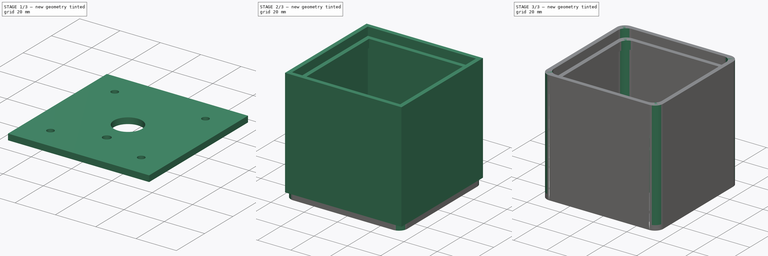
[diagram: build sequence overview — one tinted view per stage of 3, left to right]
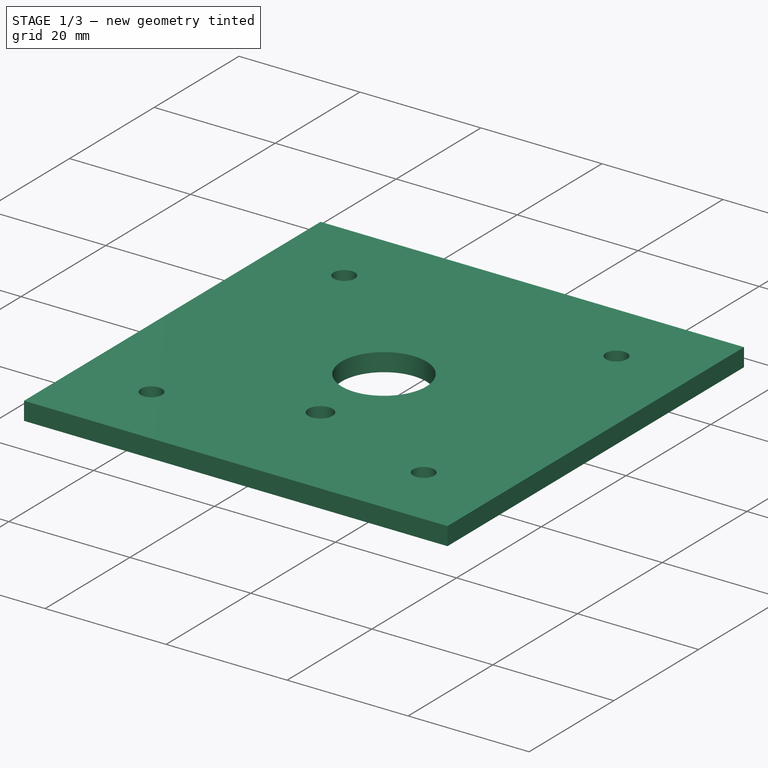
[diagram: stage 1 of 3 — iso view after this stage's code; geometry added in this stage tinted green]
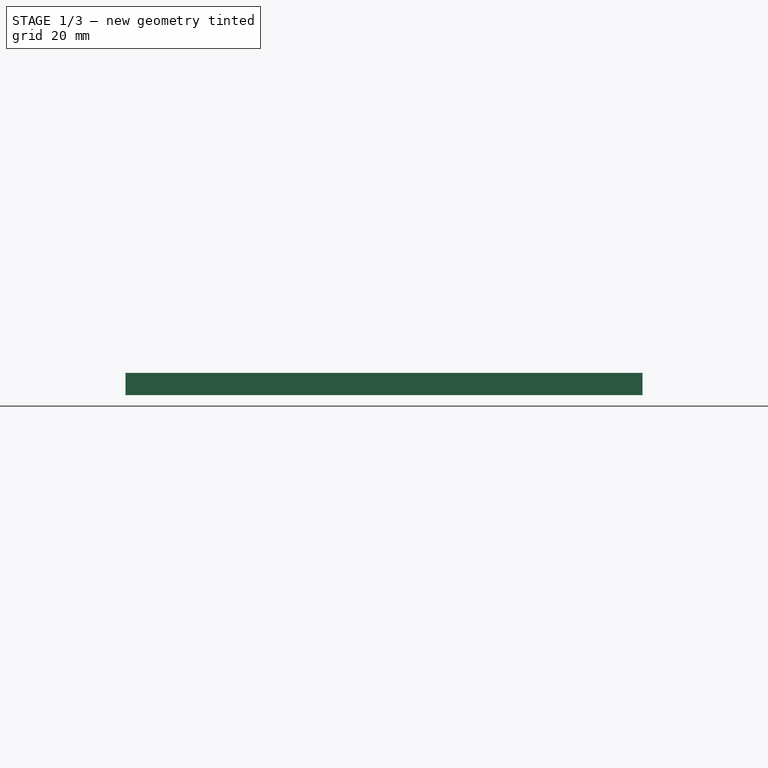
[diagram: stage 1 of 3 — front view after this stage's code; geometry added in this stage tinted green]
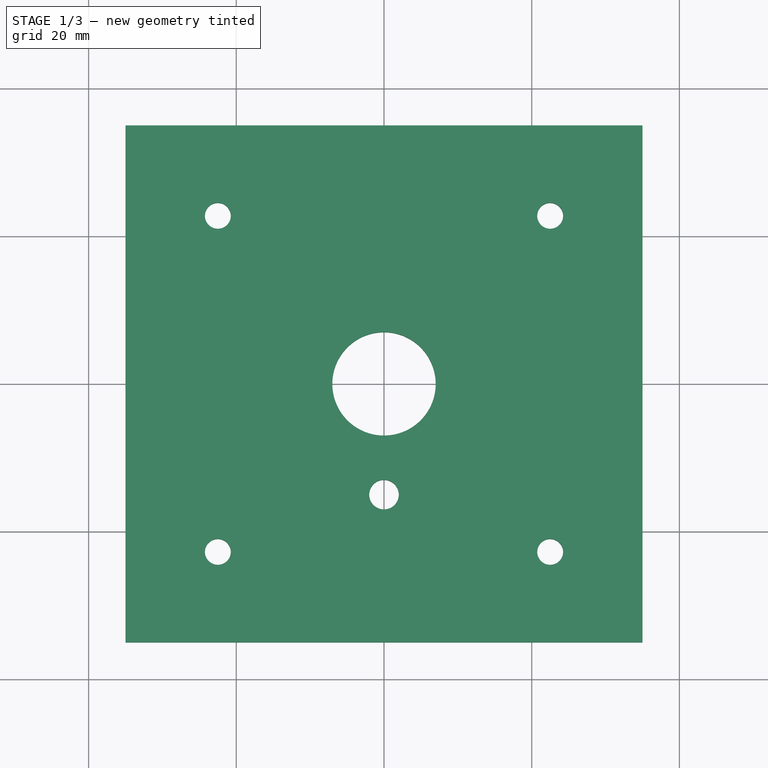
[diagram: stage 1 of 3 — top view after this stage's code; geometry added in this stage tinted green]
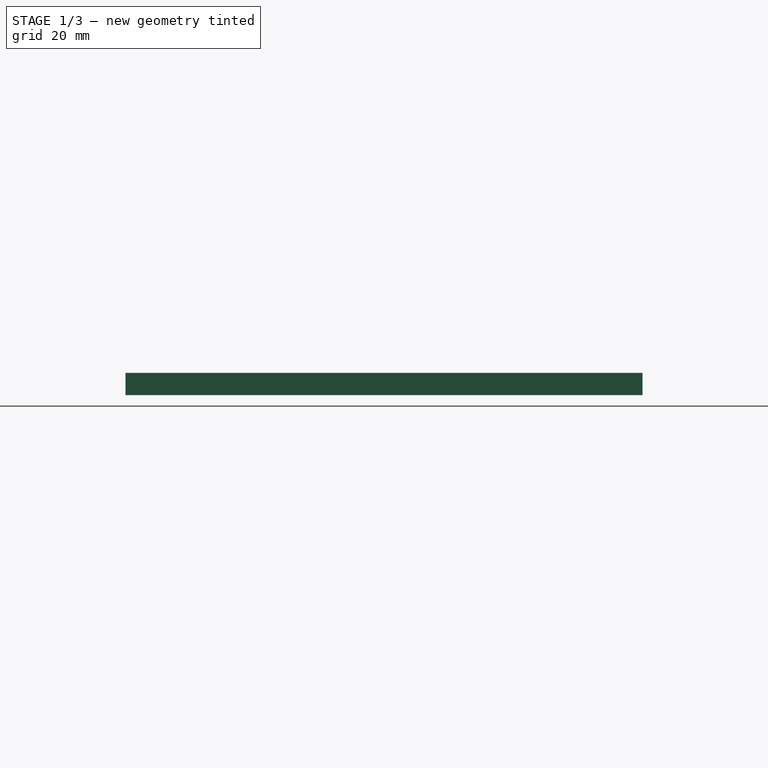
[diagram: stage 1 of 3 — right view after this stage's code; geometry added in this stage tinted green]
FCSTD DOCUMENT  (FreeCAD 1.0R39109 (Git))
Label: tablet_spk_body_aiyima
License: All rights reserved
LicenseURL: https://en.wikipedia.org/wiki/All_rights_reserved
objects: Sketcher::SketchObject×5, PartDesign::Pad×4, PartDesign::Fillet×2, PartDesign::Pocket×1, PartDesign::Body×1
note: 32 computed .brp shape members not serialized (recipe doc carries the construction recipe); baked Part::Feature solids carry a one-line shape summary decoded from their .brp

FEATURE [Sketcher::SketchObject] Sketch  label="sketch_bot_body"
  ArcFitTolerance = 1e-06
  AttachmentSupport = -> [XY_Plane]
  FullyConstrained = true
  MakeInternals = false
  MapMode = 5
  sketch-geometry (5):
    g0: LineSegment StartX=-35 StartY=-35 StartZ=0 EndX=35 EndY=-35 EndZ=0
    g1: LineSegment StartX=35 StartY=-35 StartZ=0 EndX=35 EndY=35 EndZ=0
    g2: LineSegment StartX=35 StartY=35 StartZ=0 EndX=-35 EndY=35 EndZ=0
    g3: LineSegment StartX=-35 StartY=35 StartZ=0 EndX=-35 EndY=-35 EndZ=0
    g4: GeomPoint [constr] X=0 Y=0 Z=0
  constraints (12):
    c: Coincident(g0,g1)
    c: Coincident(g1,g2)
    c: Coincident(g2,g3)
    c: Coincident(g3,g0)
    c: Horizontal(g0)
    c: Horizontal(g2)
    c: Vertical(g1)
    c: Vertical(g3)
    c: Symmetric(g2,g0,g4)
    c: Distance(g1,g3) = 70
    c: Distance(g0,g2) = 70
    c: Coincident(g4,g-1)
FEATURE [PartDesign::Pad] Pad  label="bot_body"
  Direction = (0,0,1)
  Length = 3
  Length2 = 10
  Profile = -> Sketch
  ReferenceAxis = -> Sketch [N_Axis]
  Refine = true
  Reversed = true
  Suppressed = false
  Type = 0
FEATURE [Sketcher::SketchObject] Sketch001  label="sketch_bot_hole"
  ArcFitTolerance = 1e-06
  AttachmentSupport = -> [XY_Plane]
  FullyConstrained = true
  MakeInternals = false
  MapMode = 5
  sketch-geometry (6):
    g0: Circle CenterX=-22.5 CenterY=22.7541 CenterZ=0 NormalX=0 NormalY=0 NormalZ=1 AngleXU=0 Radius=1.75
    g1: Circle CenterX=22.5 CenterY=22.7541 CenterZ=0 NormalX=0 NormalY=0 NormalZ=1 AngleXU=0 Radius=1.75
    g2: Circle CenterX=-22.5 CenterY=-22.7541 CenterZ=0 NormalX=0 NormalY=0 NormalZ=1 AngleXU=0 Radius=1.75
    g3: Circle CenterX=22.5 CenterY=-22.7541 CenterZ=0 NormalX=0 NormalY=0 NormalZ=1 AngleXU=0 Radius=1.75
    g4: Circle CenterX=0 CenterY=0 CenterZ=0 NormalX=0 NormalY=0 NormalZ=1 AngleXU=0 Radius=7
    g5: Circle CenterX=0 CenterY=-15 CenterZ=0 NormalX=0 NormalY=0 NormalZ=1 AngleXU=0 Radius=2
  constraints (14):
    c: Diameter(g0) = 3.5
    c: Distance(g0,g-1) = 32
    c: Equal(g0,g1)
    c: Symmetric(g0,g1,g-2)
    c: Equal(g0,g2)
    c: Symmetric(g0,g2,g-1)
    c: Equal(g1,g3)
    c: Symmetric(g1,g3,g-1)
    c: Diameter(g4) = 14
    c: Coincident(g4,g-1)
    c: Diameter(g5) = 4
    c: PointOnObject(g5,g-2)
    c: DistanceY(g5,g4) = 15
    c: Distance(g0,g-2) = 22.5
FEATURE [PartDesign::Pocket] Pocket  label="bot_hole"
  BaseFeature = -> Pad
  Direction = (0,0,-1)
  Length = 3
  Length2 = 5
  Profile = -> Sketch001
  ReferenceAxis = -> Sketch001 [N_Axis]
  Refine = true
  Suppressed = false
  Type = 0
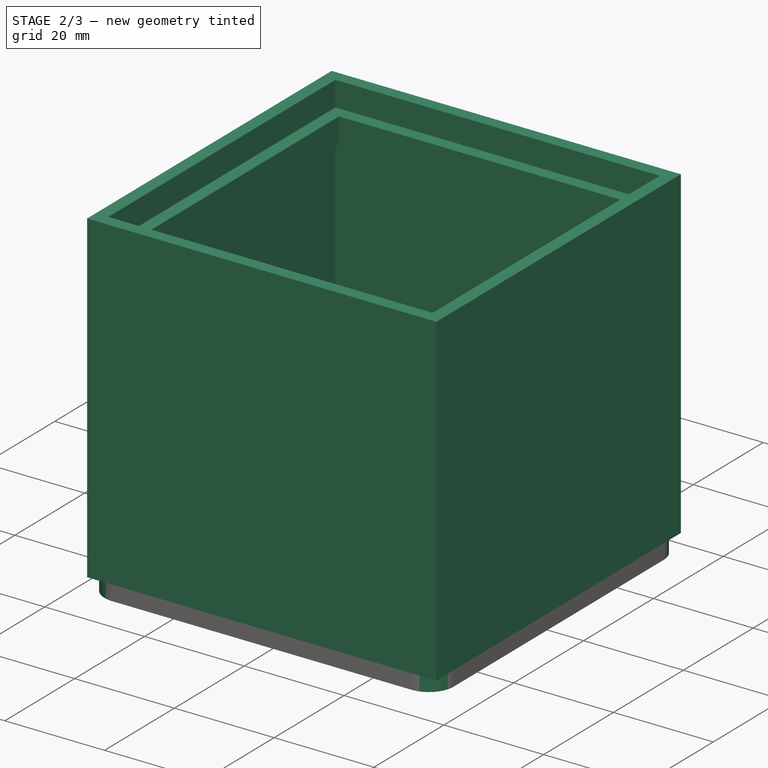
[diagram: stage 2 of 3 — iso view after this stage's code; geometry added in this stage tinted green]
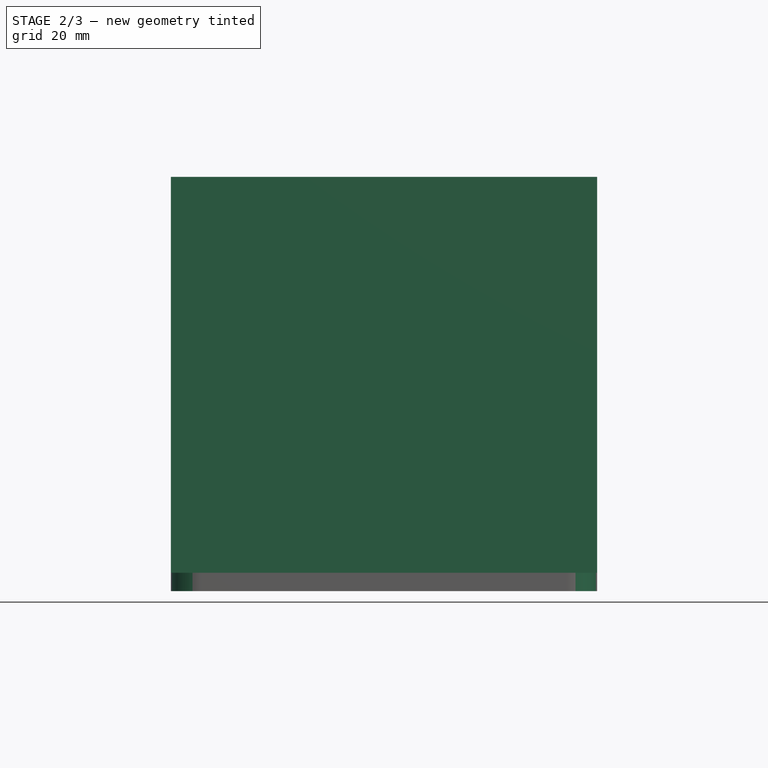
[diagram: stage 2 of 3 — front view after this stage's code; geometry added in this stage tinted green]
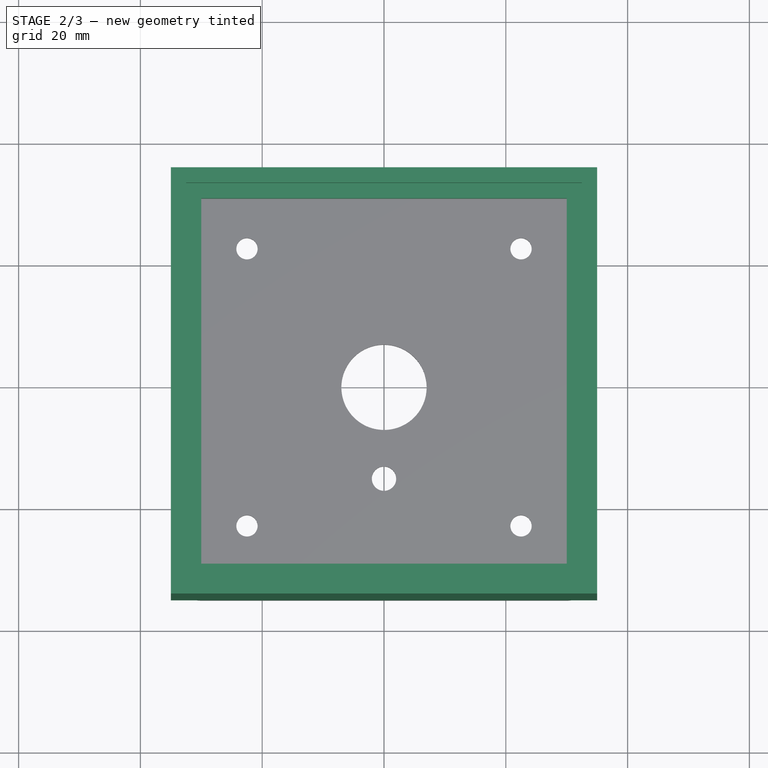
[diagram: stage 2 of 3 — top view after this stage's code; geometry added in this stage tinted green]
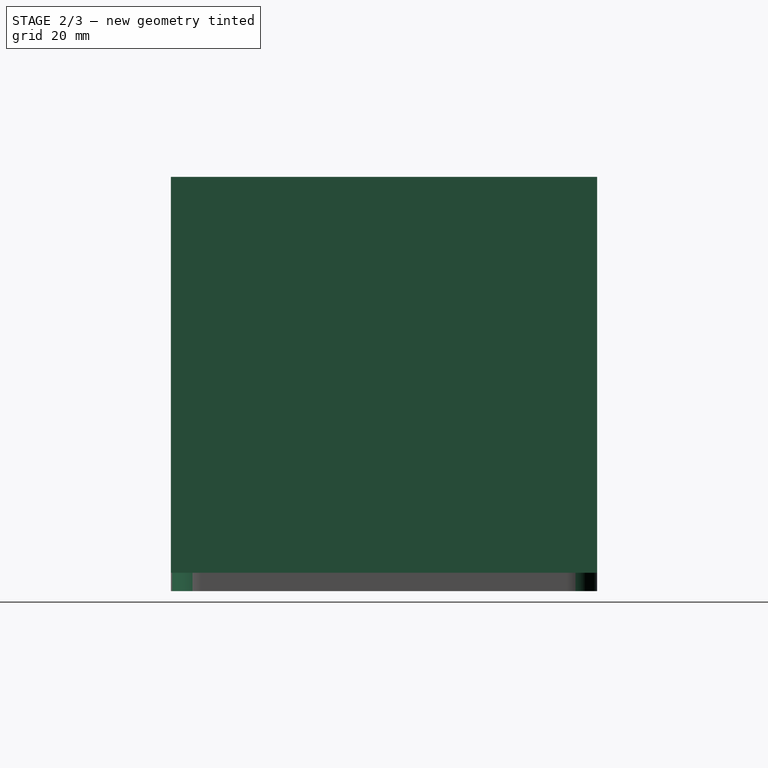
[diagram: stage 2 of 3 — right view after this stage's code; geometry added in this stage tinted green]
FEATURE [Sketcher::SketchObject] Sketch002  label="sketch_side_body"
  ArcFitTolerance = 1e-06
  AttachmentSupport = -> [XY_Plane]
  FullyConstrained = true
  MakeInternals = false
  MapMode = 5
  sketch-geometry (10):
    g0: LineSegment StartX=-35 StartY=-35 StartZ=0 EndX=35 EndY=-35 EndZ=0
    g1: LineSegment StartX=35 StartY=-35 StartZ=0 EndX=35 EndY=35 EndZ=0
    g2: LineSegment StartX=35 StartY=35 StartZ=0 EndX=-35 EndY=35 EndZ=0
    g3: LineSegment StartX=-35 StartY=35 StartZ=0 EndX=-35 EndY=-35 EndZ=0
    g4: GeomPoint [constr] X=0 Y=0 Z=0
    g5: LineSegment StartX=-32.5 StartY=-32.5 StartZ=0 EndX=32.5 EndY=-32.5 EndZ=0
    g6: LineSegment StartX=32.5 StartY=-32.5 StartZ=0 EndX=32.5 EndY=32.5 EndZ=0
    g7: LineSegment StartX=32.5 StartY=32.5 StartZ=0 EndX=-32.5 EndY=32.5 EndZ=0
    g8: LineSegment StartX=-32.5 StartY=32.5 StartZ=0 EndX=-32.5 EndY=-32.5 EndZ=0
    g9: GeomPoint [constr] X=0 Y=0 Z=0
  constraints (24):
    c: Coincident(g0,g1)
    c: Coincident(g1,g2)
    c: Coincident(g2,g3)
    c: Coincident(g3,g0)
    c: Horizontal(g0)
    c: Horizontal(g2)
    c: Vertical(g1)
    c: Vertical(g3)
    c: Symmetric(g2,g0,g4)
    c: Distance(g1,g3) = 70
    c: Distance(g0,g2) = 70
    c: Coincident(g4,g-1)
    c: Coincident(g5,g6)
    c: Coincident(g6,g7)
    c: Coincident(g7,g8)
    c: Coincident(g8,g5)
    c: Horizontal(g5)
    c: Horizontal(g7)
    c: Vertical(g6)
    c: Vertical(g8)
    c: Symmetric(g7,g5,g9)
    c: Distance(g6,g8) = 65
    c: Distance(g5,g7) = 65
    c: Coincident(g9,g4)
FEATURE [PartDesign::Fillet] Fillet  label="Fillet_bot_body"
  Base = -> Pocket [Edge2,Edge8,Edge1,Edge5]
  BaseFeature = -> Pocket
  Radius = 5
  Refine = true
  SupportTransform = false
  Suppressed = false
  UseAllEdges = false
FEATURE [PartDesign::Pad] Pad001  label="side_body"
  BaseFeature = -> Fillet
  Direction = (0,0,1)
  Length = 65
  Length2 = 10
  Profile = -> Sketch002
  ReferenceAxis = -> Sketch002 [N_Axis]
  Refine = true
  Suppressed = false
  Type = 0
FEATURE [Sketcher::SketchObject] Sketch003  label="sketch_tuk"
  ArcFitTolerance = 1e-06
  AttachmentSupport = -> [XY_Plane]
  FullyConstrained = true
  MakeInternals = false
  MapMode = 5
  sketch-geometry (10):
    g0: LineSegment StartX=-35 StartY=-35 StartZ=0 EndX=35 EndY=-35 EndZ=0
    g1: LineSegment StartX=35 StartY=-35 StartZ=0 EndX=35 EndY=35 EndZ=0
    g2: LineSegment StartX=35 StartY=35 StartZ=0 EndX=-35 EndY=35 EndZ=0
    g3: LineSegment StartX=-35 StartY=35 StartZ=0 EndX=-35 EndY=-35 EndZ=0
    g4: GeomPoint [constr] X=0 Y=0 Z=0
    g5: LineSegment StartX=-30 StartY=-30 StartZ=0 EndX=30 EndY=-30 EndZ=0
    g6: LineSegment StartX=30 StartY=-30 StartZ=0 EndX=30 EndY=30 EndZ=0
    g7: LineSegment StartX=30 StartY=30 StartZ=0 EndX=-30 EndY=30 EndZ=0
    g8: LineSegment StartX=-30 StartY=30 StartZ=0 EndX=-30 EndY=-30 EndZ=0
    g9: GeomPoint [constr] X=0 Y=0 Z=0
  constraints (24):
    c: Coincident(g0,g1)
    c: Coincident(g1,g2)
    c: Coincident(g2,g3)
    c: Coincident(g3,g0)
    c: Horizontal(g0)
    c: Horizontal(g2)
    c: Vertical(g1)
    c: Vertical(g3)
    c: Symmetric(g2,g0,g4)
    c: Distance(g1,g3) = 70
    c: Distance(g0,g2) = 70
    c: Coincident(g4,g-1)
    c: Coincident(g5,g6)
    c: Coincident(g6,g7)
    c: Coincident(g7,g8)
    c: Coincident(g8,g5)
    c: Horizontal(g5)
    c: Horizontal(g7)
    c: Vertical(g6)
    c: Vertical(g8)
    c: Symmetric(g7,g5,g9)
    c: Distance(g6,g8) = 60
    c: Distance(g5,g7) = 60
    c: Coincident(g9,g4)
FEATURE [PartDesign::Pad] Pad002  label="tuk_body"
  BaseFeature = -> Pad001
  Direction = (0,0,1)
  Length = 60
  Length2 = -55
  Profile = -> Sketch003
  ReferenceAxis = -> Sketch003 [N_Axis]
  Refine = true
  Suppressed = false
  Type = 4
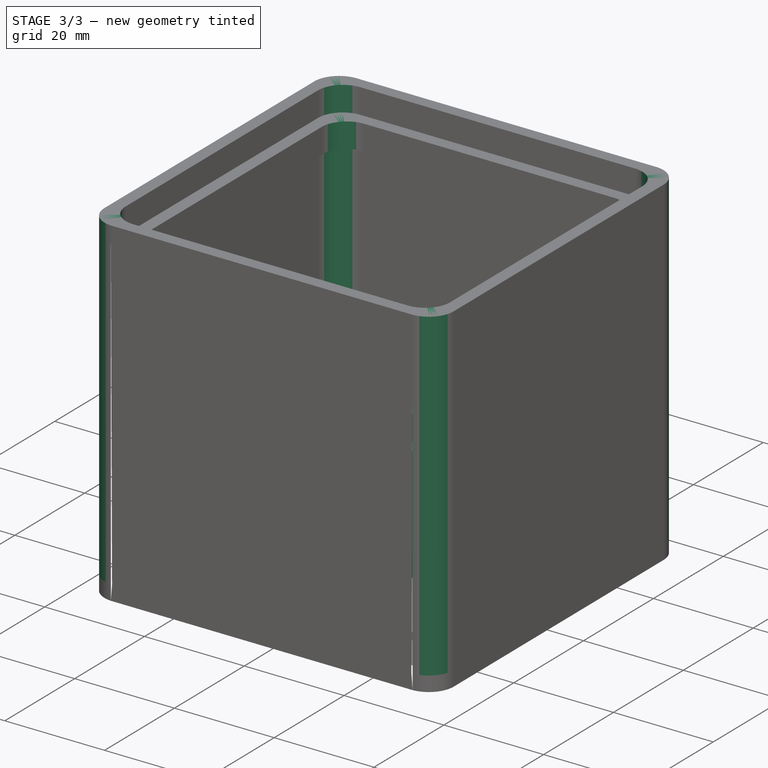
[diagram: stage 3 of 3 — iso view after this stage's code; geometry added in this stage tinted green]
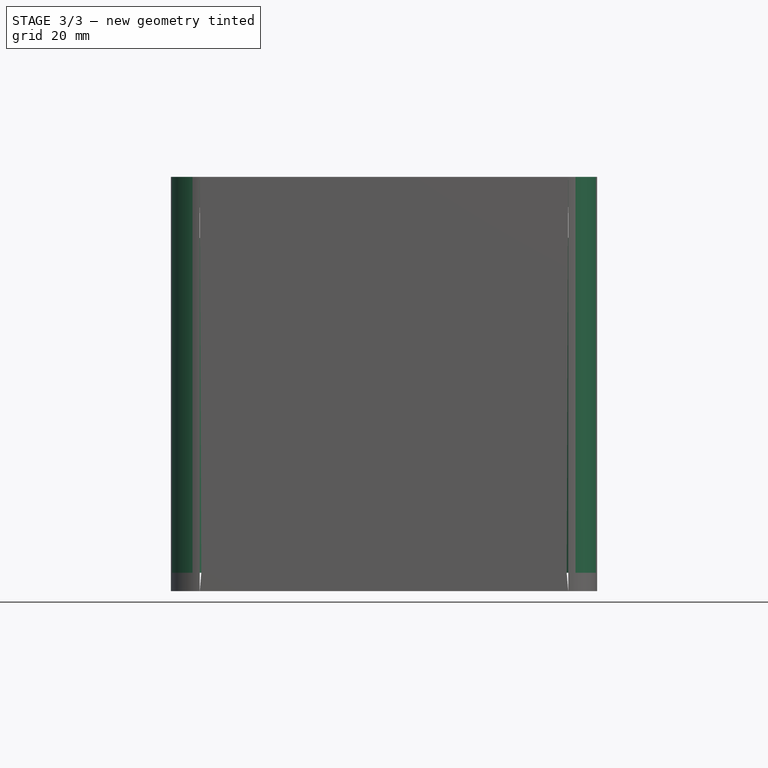
[diagram: stage 3 of 3 — front view after this stage's code; geometry added in this stage tinted green]
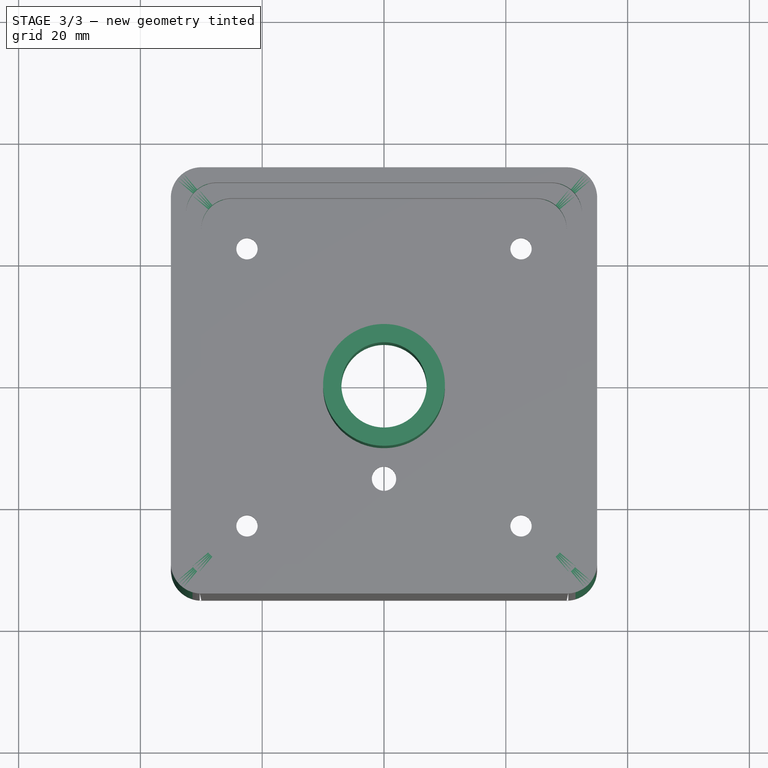
[diagram: stage 3 of 3 — top view after this stage's code; geometry added in this stage tinted green]
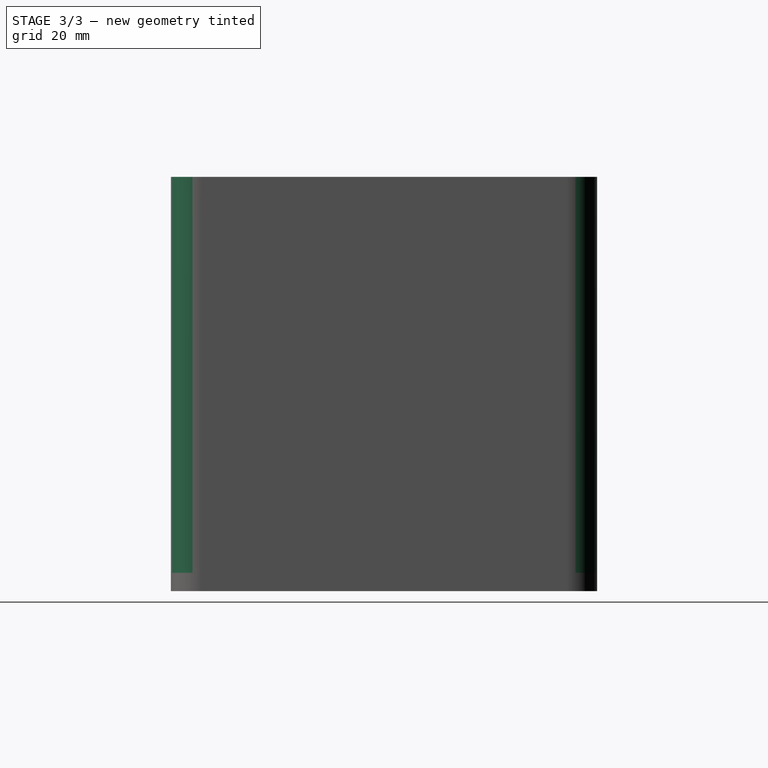
[diagram: stage 3 of 3 — right view after this stage's code; geometry added in this stage tinted green]
FEATURE [PartDesign::Fillet] Fillet001
  Base = -> Pad002 [Edge88,Edge89,Edge90,Edge87,Edge10,Edge22,Edge39,Edge13,Edge26,Edge37,Edge15,Edge24,Edge35,Edge11,Edge21,Edge34]
  BaseFeature = -> Pad002
  Radius = 5
  Refine = true
  SupportTransform = false
  Suppressed = false
  UseAllEdges = false
FEATURE [Sketcher::SketchObject] Sketch004  label="Sketch_duct_pipe"
  ArcFitTolerance = 1e-06
  AttachmentSupport = -> [XY_Plane]
  FullyConstrained = true
  MakeInternals = false
  MapMode = 5
  sketch-geometry (2):
    g0: Circle CenterX=0 CenterY=0 CenterZ=0 NormalX=0 NormalY=0 NormalZ=1 AngleXU=0 Radius=7
    g1: Circle CenterX=0 CenterY=0 CenterZ=0 NormalX=0 NormalY=0 NormalZ=1 AngleXU=0 Radius=10
  constraints (5):
    c: Diameter(g0) = 14
    c: Coincident(g0,g-1)
    c: Diameter(g1) = 20
    c: Coincident(g1,g0)
    c: Distance(g0,g1) = 3
FEATURE [PartDesign::Pad] Pad003  label="duct_pipe"
  BaseFeature = -> Fillet001
  Direction = (0,0,1)
  Length = 23
  Length2 = 10
  Profile = -> Sketch004
  ReferenceAxis = -> Sketch004 [N_Axis]
  Refine = true
  Suppressed = false
  Type = 0
FEATURE [PartDesign::Body] Body  label="몸통"
  AllowCompound = false
  Group = -> [Sketch,Pad,Sketch001,Pocket,Sketch002,Fillet,Pad001,Sketch003,Pad002,Fillet001,Sketch004,Pad003]
  Origin = -> Origin
  Tip = -> Pad003
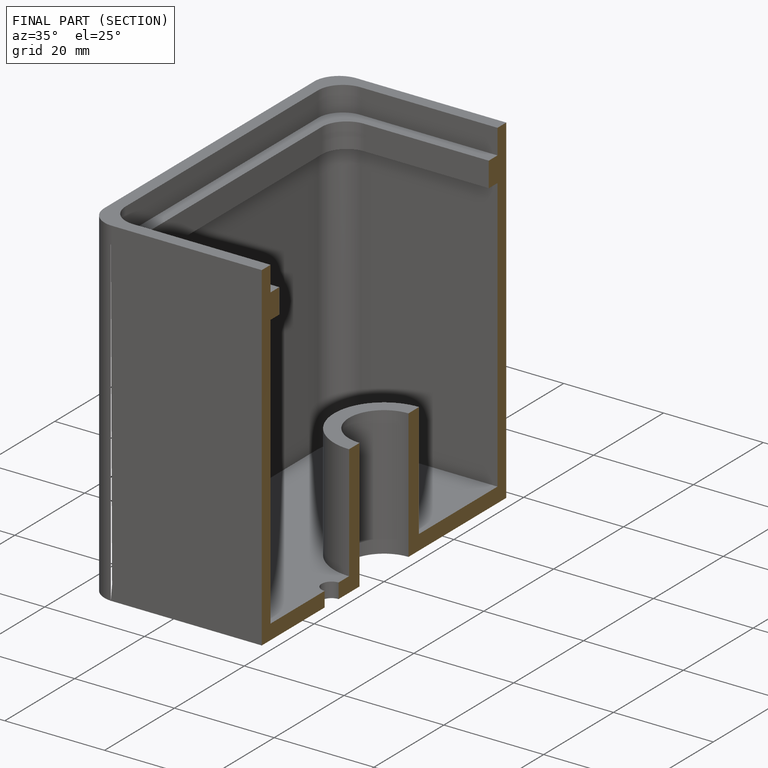
[diagram: finished part — half-section view (interior)]
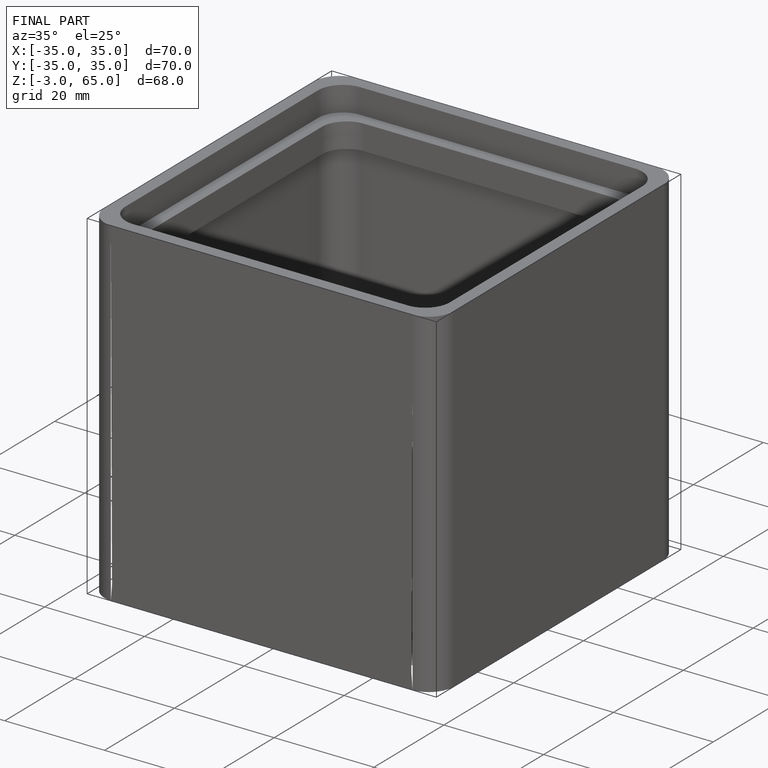
[diagram: finished part — iso view with bounding-box wireframe]
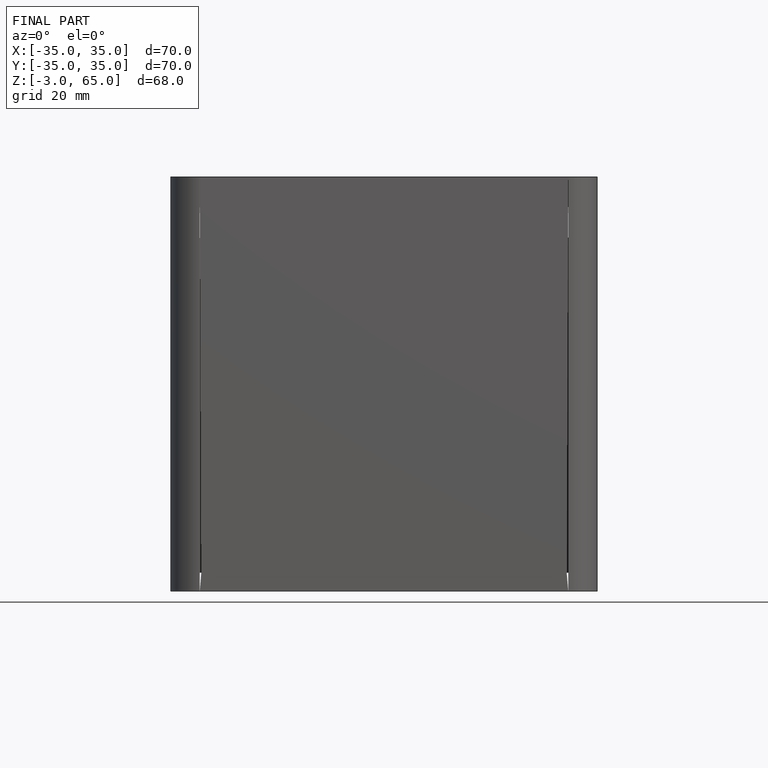
[diagram: finished part — front view with bounding-box wireframe]
